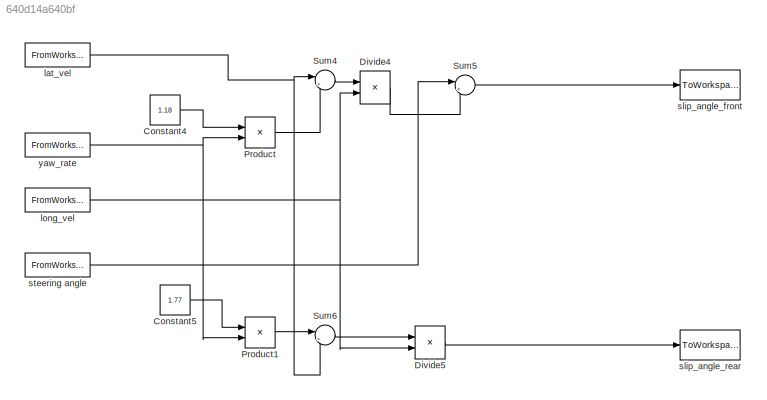
MODEL slx_640d14a640bf
KIND model
CONFIG AbsTol = auto
CONFIG FixedStep = auto
CONFIG MaxStep = auto
CONFIG MinStep = auto
CONFIG RelTol = 1e-3
CONFIG SampleTimeConstraint = Unconstrained
CONFIG Solver = ode45
CONFIG SolverMode = Auto
CONFIG SolverName = ode45
CONFIG StartTime = 0.0
CONFIG StopTime = 10.0
BLOCK [Constant] Constant4
  Value = 1.18
BLOCK [Constant] Constant5
  Value = 1.77
BLOCK [Product] Divide4
  InputSameDT = off
  Inputs = */
  OutDataTypeStr = Inherit: Inherit via internal rule
  Ports = [2, 1]
  RndMeth = Floor
  SaturateOnIntegerOverflow = off
BLOCK [Product] Divide5
  InputSameDT = off
  Inputs = */
  OutDataTypeStr = Inherit: Inherit via internal rule
  Ports = [2, 1]
  RndMeth = Floor
  SaturateOnIntegerOverflow = off
BLOCK [Product] Product
  InputSameDT = off
  OutDataTypeStr = Inherit: Inherit via internal rule
  Ports = [2, 1]
  RndMeth = Floor
  SaturateOnIntegerOverflow = off
BLOCK [Product] Product1
  InputSameDT = off
  OutDataTypeStr = Inherit: Inherit via internal rule
  Ports = [2, 1]
  RndMeth = Floor
  SaturateOnIntegerOverflow = off
BLOCK [Sum] Sum4
  IconShape = round
  InputSameDT = off
  Inputs = |++
  OutDataTypeStr = Inherit: Inherit via internal rule
  Ports = [2, 1]
  SaturateOnIntegerOverflow = off
BLOCK [Sum] Sum5
  IconShape = round
  InputSameDT = off
  Inputs = |+-
  OutDataTypeStr = Inherit: Inherit via internal rule
  Ports = [2, 1]
  SaturateOnIntegerOverflow = off
BLOCK [Sum] Sum6
  IconShape = round
  InputSameDT = off
  Inputs = |+-
  OutDataTypeStr = Inherit: Inherit via internal rule
  Ports = [2, 1]
  SaturateOnIntegerOverflow = off
BLOCK [FromWorkspace] lat_vel
  SampleTime = 0
  VariableName = lat_vel
  ZeroCross = on
BLOCK [FromWorkspace] long_vel
  SampleTime = 0
  VariableName = long_vel
  ZeroCross = on
BLOCK [ToWorkspace] slip_angle_front
  FixptAsFi = on
  MaxDataPoints = inf
  Ports = [1]
  SampleTime = -1
  Save2DSignal = 3-D array (concatenate along third dimension)
  SaveFormat = Timeseries
  VariableName = slip_angle_f
BLOCK [ToWorkspace] slip_angle_rear
  FixptAsFi = on
  MaxDataPoints = inf
  Ports = [1]
  SampleTime = -1
  Save2DSignal = 3-D array (concatenate along third dimension)
  SaveFormat = Timeseries
  VariableName = slip_angle_r
BLOCK [FromWorkspace] steering angle
  SampleTime = 0
  VariableName = delta
  ZeroCross = on
BLOCK [FromWorkspace] yaw_rate
  SampleTime = 0
  VariableName = yaw_rate
  ZeroCross = on
LINE Constant4:1 -> Product:1
LINE Constant5:1 -> Product1:1
LINE Divide4:1 -> Sum5:2
LINE Divide5:1 -> slip_angle_rear:1
LINE Product1:1 -> Sum6:1
LINE Product:1 -> Sum4:2
LINE Sum4:1 -> Divide4:1
LINE Sum5:1 -> slip_angle_front:1
LINE Sum6:1 -> Divide5:1
NET lat_vel:1 -> Sum4:1, Sum6:2
NET long_vel:1 -> Divide4:2, Divide5:2
LINE steering angle:1 -> Sum5:1
NET yaw_rate:1 -> Product1:2, Product:2
note: NET lines group one-source signal fan-out (src -> all destinations, sorted); 1:1 wires keep LINE
